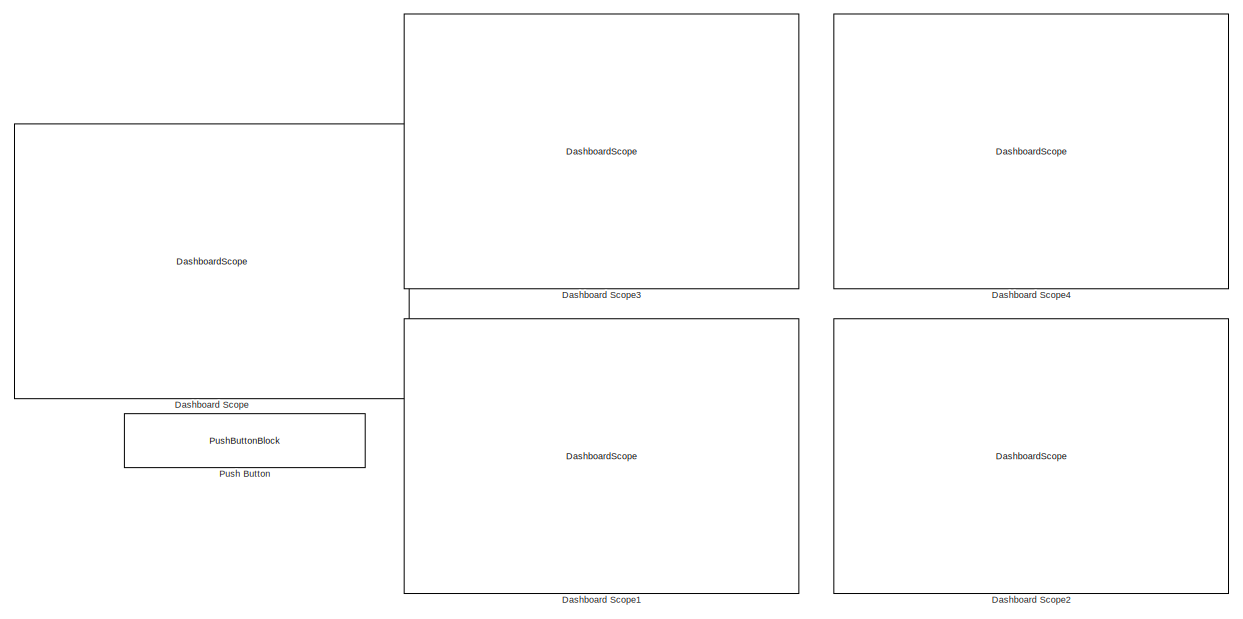
[diagram: root canvas - part 1/2, full width, top band]
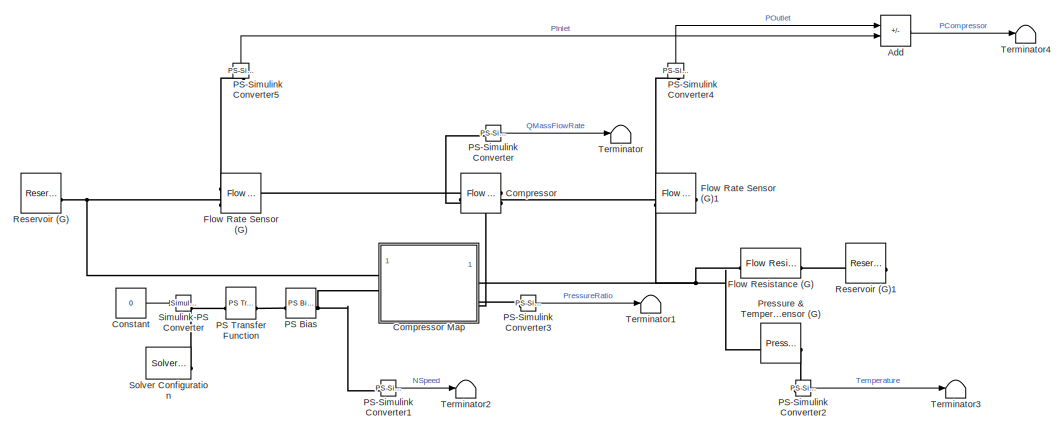
[diagram: root canvas - part 2/2, full width, bottom band]
MODEL slx_ef4cad2152e6
KIND model
CONFIG AbsTol = 1e-3
CONFIG EnableMultiTasking = off
CONFIG FixedStep = auto
CONFIG MaxStep = auto
CONFIG MinStep = auto
CONFIG PreLoadFcn = % Pressure ratio values in (Pa/Pa) obtained from reading a sample compresor data map\n% Every row below corresponds to compressor map data for a RPM value that is chosen below\npressure_ratio = [1.2 1.18 1.16 1.14 1.12 1.1];\npressure_ratio = [pressure_ratio 1.48 1.44 1.40 1.36 1.32 1.28 1.24 1.2];\npressure_ratio = [pressure_ratio 1.8 1.75 1.7 1.65 1.6 1.55 1.50 1.45 1.4];\npressure_ratio = [pressure_...<+1481ch>
CONFIG RelTol = 1e-3
CONFIG SampleTimeConstraint = Unconstrained
CONFIG SolverName = VariableStepAuto
CONFIG StartTime = 0.0
CONFIG StopTime = inf
BLOCK [Sum] Add
  IconShape = rectangular
  Inputs = +-
BLOCK [Reference] Compressor  REF=fl_lib/Gas/Sources/Flow Rate Source (G)
  NameLocation = top
  SourceBlock = fl_lib/Gas/Sources/Flow Rate Source (G)
  SourceType = Flow Rate Source (G)
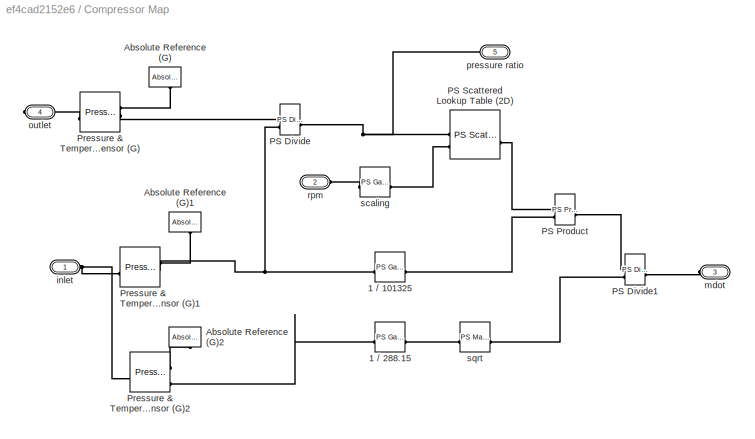
BLOCK [SubSystem] Compressor Map
  PortSchema = {"entries":[{"content":{"sides":[{"content":{"connectorIds":["LConn1","LConn2"]},"type":"ConnectorPlacement.EquallySpacedRectSide","uuid":"2fa1bf16-78f1-4246-802b-fe3282a1eb93"},{"content":{"connectorIds":["RConn1","RConn2"],"side":"RIGHT"},"type":"ConnectorPlacement.EquallySpacedRectSide","uuid":"d53d2a7f-5760-4b36-8b79-79bdb7844405"},{"content":{"connectorIds":["LConn3"],"side":"TOP"},"type":"Co...<+271ch>
  Tag = PublishSubsystem
BLOCK [Reference] Compressor Map/1 // 101325  REF=fl_lib/Physical Signals/Functions/PS Gain
  SourceBlock = fl_lib/Physical Signals/Functions/PS Gain
  SourceType = PS Gain
BLOCK [Reference] Compressor Map/1 // 288.15  REF=fl_lib/Physical Signals/Functions/PS Gain
  SourceBlock = fl_lib/Physical Signals/Functions/PS Gain
  SourceType = PS Gain
BLOCK [Reference] Compressor Map/Absolute Reference (G)  REF=fl_lib/Gas/Elements/Absolute Reference
(G)
  NameLocation = left
  SourceBlock = fl_lib/Gas/Elements/Absolute Reference\n(G)
  SourceType = Absolute Reference\n(G)
BLOCK [Reference] Compressor Map/Absolute Reference (G)1  REF=fl_lib/Gas/Elements/Absolute Reference
(G)
  NameLocation = left
  SourceBlock = fl_lib/Gas/Elements/Absolute Reference\n(G)
  SourceType = Absolute Reference\n(G)
BLOCK [Reference] Compressor Map/Absolute Reference (G)2  REF=fl_lib/Gas/Elements/Absolute Reference
(G)
  NameLocation = left
  SourceBlock = fl_lib/Gas/Elements/Absolute Reference\n(G)
  SourceType = Absolute Reference\n(G)
BLOCK [Reference] Compressor Map/PS Divide  REF=fl_lib/Physical Signals/Functions/PS Divide
  SourceBlock = fl_lib/Physical Signals/Functions/PS Divide
  SourceType = PS Divide
BLOCK [Reference] Compressor Map/PS Divide1  REF=fl_lib/Physical Signals/Functions/PS Divide
  SourceBlock = fl_lib/Physical Signals/Functions/PS Divide
  SourceType = PS Divide
BLOCK [Reference] Compressor Map/PS Product  REF=fl_lib/Physical Signals/Functions/PS Product
  SourceBlock = fl_lib/Physical Signals/Functions/PS Product
  SourceType = PS Product
BLOCK [Reference] Compressor Map/PS Scattered Lookup Table (2D)  REF=fl_lib/Physical Signals/Lookup Tables/PS Scattered Lookup
Table (2D)
  SourceBlock = fl_lib/Physical Signals/Lookup Tables/PS Scattered Lookup\nTable (2D)
  SourceType = PS Scattered Lookup\nTable (2D)
BLOCK [Reference] Compressor Map/Pressure & Temperature Sensor (G)  REF=fl_lib/Gas/Sensors/Pressure &
Temperature Sensor
(G)
  SourceBlock = fl_lib/Gas/Sensors/Pressure &\nTemperature Sensor\n(G)
  SourceType = Pressure &\nTemperature Sensor\n(G)
BLOCK [Reference] Compressor Map/Pressure & Temperature Sensor (G)1  REF=fl_lib/Gas/Sensors/Pressure &
Temperature Sensor
(G)
  SourceBlock = fl_lib/Gas/Sensors/Pressure &\nTemperature Sensor\n(G)
  SourceType = Pressure &\nTemperature Sensor\n(G)
BLOCK [Reference] Compressor Map/Pressure & Temperature Sensor (G)2  REF=fl_lib/Gas/Sensors/Pressure &
Temperature Sensor
(G)
  SourceBlock = fl_lib/Gas/Sensors/Pressure &\nTemperature Sensor\n(G)
  SourceType = Pressure &\nTemperature Sensor\n(G)
BLOCK [PMIOPort] Compressor Map/inlet
  Side = Left
BLOCK [PMIOPort] Compressor Map/mdot
  Port = 3
  Side = Left
BLOCK [PMIOPort] Compressor Map/outlet
  Port = 4
  Side = Right
BLOCK [PMIOPort] Compressor Map/pressure ratio
  Port = 5
  Side = Right
BLOCK [PMIOPort] Compressor Map/rpm
  Port = 2
  Side = Left
BLOCK [Reference] Compressor Map/scaling  REF=fl_lib/Physical Signals/Functions/PS Gain
  SourceBlock = fl_lib/Physical Signals/Functions/PS Gain
  SourceType = PS Gain
BLOCK [Reference] Compressor Map/sqrt  REF=fl_lib/Physical Signals/Functions/PS Math Function
  SourceBlock = fl_lib/Physical Signals/Functions/PS Math Function
  SourceType = PS Math Function
BLOCK [Constant] Constant
  Value = 0
BLOCK [DashboardScope] Dashboard Scope
  Ymax = 5000
  Ymin = 0
BLOCK [DashboardScope] Dashboard Scope1
  Ymax = 5
  Ymin = 0
BLOCK [DashboardScope] Dashboard Scope2
  Ymax = 5
  Ymin = 0
BLOCK [DashboardScope] Dashboard Scope3
  Ymax = 600
  Ymin = 0
BLOCK [DashboardScope] Dashboard Scope4
  Ymax = 800
  Ymin = 200
BLOCK [Reference] Flow Rate Sensor (G)  REF=fl_lib/Gas/Sensors/Flow Rate Sensor (G)
  NameLocation = top
  SourceBlock = fl_lib/Gas/Sensors/Flow Rate Sensor (G)
  SourceType = Flow Rate Sensor (G)
BLOCK [Reference] Flow Rate Sensor (G)1  REF=fl_lib/Gas/Sensors/Flow Rate Sensor (G)
  NameLocation = top
  SourceBlock = fl_lib/Gas/Sensors/Flow Rate Sensor (G)
  SourceType = Flow Rate Sensor (G)
BLOCK [Reference] Flow Resistance (G)  REF=fl_lib/Gas/Elements/Flow Resistance (G)
  SourceBlock = fl_lib/Gas/Elements/Flow Resistance (G)
  SourceType = Flow Resistance (G)
BLOCK [Reference] PS Bias  REF=fl_lib/Physical Signals/Functions/PS Bias
  SourceBlock = fl_lib/Physical Signals/Functions/PS Bias
  SourceType = PS Bias
BLOCK [Reference] PS Transfer Function  REF=fl_lib/Physical Signals/Linear Operators/PS Transfer Function
  SourceBlock = fl_lib/Physical Signals/Linear Operators/PS Transfer Function
  SourceType = PS Transfer Function
BLOCK [Reference] PS-Simulink Converter  REF=nesl_utility/PS-Simulink
Converter
  SourceBlock = nesl_utility/PS-Simulink\nConverter
  SourceType = PS-Simulink\nConverter
BLOCK [Reference] PS-Simulink Converter1  REF=nesl_utility/PS-Simulink
Converter
  NameLocation = top
  SourceBlock = nesl_utility/PS-Simulink\nConverter
  SourceType = PS-Simulink\nConverter
BLOCK [Reference] PS-Simulink Converter2  REF=nesl_utility/PS-Simulink
Converter
  SourceBlock = nesl_utility/PS-Simulink\nConverter
  SourceType = PS-Simulink\nConverter
BLOCK [Reference] PS-Simulink Converter3  REF=nesl_utility/PS-Simulink
Converter
  SourceBlock = nesl_utility/PS-Simulink\nConverter
  SourceType = PS-Simulink\nConverter
BLOCK [Reference] PS-Simulink Converter4  REF=nesl_utility/PS-Simulink
Converter
  NameLocation = right
  SourceBlock = nesl_utility/PS-Simulink\nConverter
  SourceType = PS-Simulink\nConverter
BLOCK [Reference] PS-Simulink Converter5  REF=nesl_utility/PS-Simulink
Converter
  NameLocation = right
  SourceBlock = nesl_utility/PS-Simulink\nConverter
  SourceType = PS-Simulink\nConverter
BLOCK [Reference] Pressure & Temperature Sensor (G)  REF=fl_lib/Gas/Sensors/Pressure &
Temperature Sensor
(G)
  SourceBlock = fl_lib/Gas/Sensors/Pressure &\nTemperature Sensor\n(G)
  SourceType = Pressure &\nTemperature Sensor\n(G)
BLOCK [PushButtonBlock] Push Button
  ButtonText = Go ! Go !
  IconAlignment = Right
  OffValue = 0.000000
  OnValue = 3000
BLOCK [Reference] Reservoir (G)  REF=fl_lib/Gas/Elements/Reservoir (G)
  SourceBlock = fl_lib/Gas/Elements/Reservoir (G)
  SourceType = Reservoir (G)
BLOCK [Reference] Reservoir (G)1  REF=fl_lib/Gas/Elements/Reservoir (G)
  NameLocation = top
  SourceBlock = fl_lib/Gas/Elements/Reservoir (G)
  SourceType = Reservoir (G)
BLOCK [Reference] Simulink-PS Converter  REF=nesl_utility/Simulink-PS
Converter
  SourceBlock = nesl_utility/Simulink-PS\nConverter
  SourceType = Simulink-PS\nConverter
BLOCK [Reference] Solver Configuration  REF=nesl_utility/Solver
Configuration
  SourceBlock = nesl_utility/Solver\nConfiguration
  SourceType = Solver\nConfiguration
BLOCK [Terminator] Terminator
BLOCK [Terminator] Terminator1
BLOCK [Terminator] Terminator2
BLOCK [Terminator] Terminator3
BLOCK [Terminator] Terminator4
LINE Add:1 -> Terminator4:1
LINE Constant:1 -> Simulink-PS Converter:1
LINE PS-Simulink Converter1:1 -> Terminator2:1
LINE PS-Simulink Converter2:1 -> Terminator3:1
LINE PS-Simulink Converter3:1 -> Terminator1:1
LINE PS-Simulink Converter4:1 -> Add:1
LINE PS-Simulink Converter5:1 -> Add:2
LINE PS-Simulink Converter:1 -> Terminator:1
PNET net1: Compressor Map/1 // 101325:LConn1 -- Compressor Map/PS Divide:LConn2 -- Compressor Map/Pressure & Temperature Sensor (G)1:RConn2
PLINE Compressor Map/1 // 101325:RConn1 -- Compressor Map/PS Product:LConn2
PLINE Compressor Map/1 // 288.15:LConn1 -- Compressor Map/Pressure & Temperature Sensor (G)2:RConn3
PLINE Compressor Map/1 // 288.15:RConn1 -- Compressor Map/sqrt:LConn1
PLINE Compressor Map/Absolute Reference (G)1:LConn1 -- Compressor Map/Pressure & Temperature Sensor (G)1:RConn1
PLINE Compressor Map/Absolute Reference (G)2:LConn1 -- Compressor Map/Pressure & Temperature Sensor (G)2:RConn1
PLINE Compressor Map/Absolute Reference (G):LConn1 -- Compressor Map/Pressure & Temperature Sensor (G):RConn1
PLINE Compressor Map/PS Divide1:LConn1 -- Compressor Map/PS Product:RConn1
PLINE Compressor Map/PS Divide1:LConn2 -- Compressor Map/sqrt:RConn1
PLINE Compressor Map/PS Divide1:RConn1 -- Compressor Map/mdot:RConn1
PLINE Compressor Map/PS Divide:LConn1 -- Compressor Map/Pressure & Temperature Sensor (G):RConn2
PNET net2: Compressor Map/PS Divide:RConn1 -- Compressor Map/PS Scattered Lookup Table (2D):LConn1 -- Compressor Map/pressure ratio:RConn1
PLINE Compressor Map/PS Product:LConn1 -- Compressor Map/PS Scattered Lookup Table (2D):RConn1
PLINE Compressor Map/PS Scattered Lookup Table (2D):LConn2 -- Compressor Map/scaling:RConn1
PNET net3: Compressor Map/Pressure & Temperature Sensor (G)1:LConn1 -- Compressor Map/Pressure & Temperature Sensor (G)2:LConn1 -- Compressor Map/inlet:RConn1
PLINE Compressor Map/Pressure & Temperature Sensor (G):LConn1 -- Compressor Map/outlet:RConn1
PLINE Compressor Map/rpm:RConn1 -- Compressor Map/scaling:LConn1
PNET net4: Compressor Map:LConn1 -- Flow Rate Sensor (G):LConn1 -- Reservoir (G):LConn1
PNET net5: Compressor Map:LConn2 -- PS Bias:RConn1 -- PS-Simulink Converter1:LConn1
PNET net6: Compressor Map:LConn3 -- Compressor:LConn2 -- PS-Simulink Converter:LConn1
PNET net7: Compressor Map:RConn1 -- Flow Rate Sensor (G)1:RConn1 -- Flow Resistance (G):LConn1 -- Pressure & Temperature Sensor (G):LConn1
PLINE Compressor Map:RConn2 -- PS-Simulink Converter3:LConn1
PLINE Compressor:LConn1 -- Flow Rate Sensor (G):RConn1
PLINE Compressor:RConn1 -- Flow Rate Sensor (G)1:LConn1
PLINE Flow Rate Sensor (G)1:RConn3 -- PS-Simulink Converter4:LConn1
PLINE Flow Rate Sensor (G):RConn3 -- PS-Simulink Converter5:LConn1
PLINE Flow Resistance (G):RConn1 -- Reservoir (G)1:LConn1
PLINE PS Bias:LConn1 -- PS Transfer Function:RConn1
PNET net8: PS Transfer Function:LConn1 -- Simulink-PS Converter:RConn1 -- Solver Configuration:RConn1
PLINE PS-Simulink Converter2:LConn1 -- Pressure & Temperature Sensor (G):RConn1
note: PNET lines group multi-terminal physical nets as a canonical sorted terminal list (undirected conserving connections); 2-terminal nets keep the pairwise PLINE form
